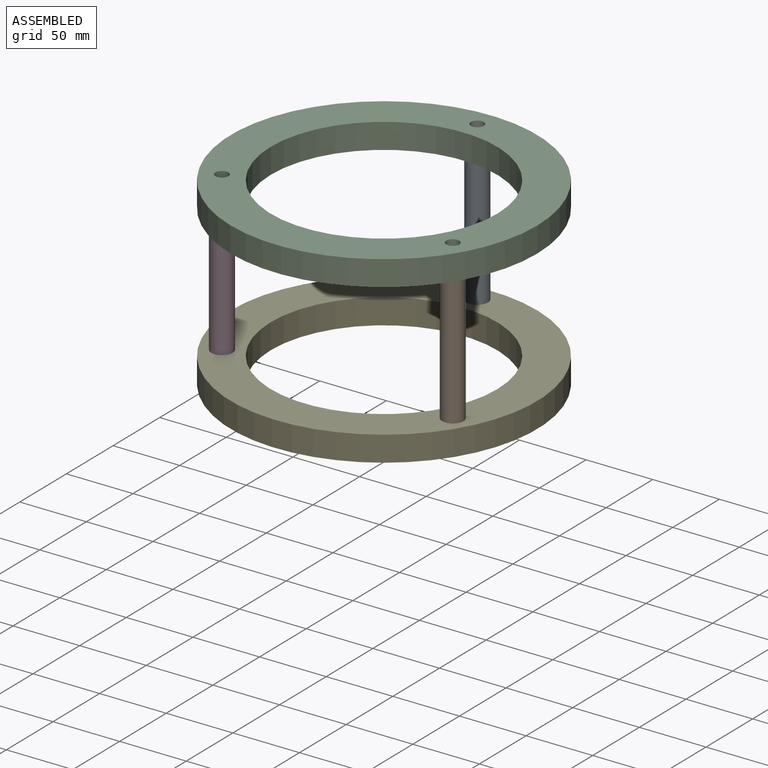
[diagram: assembled view]
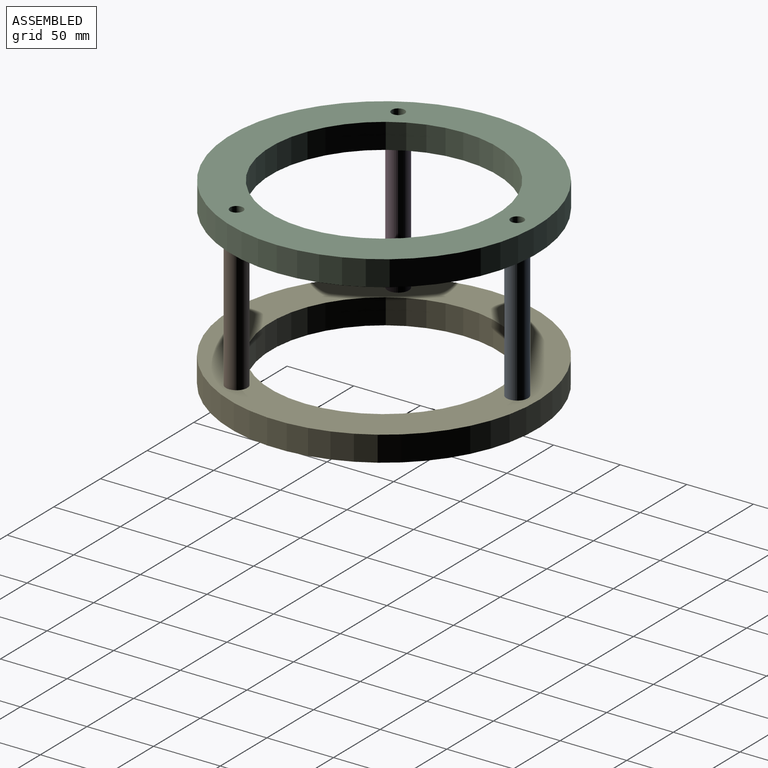
[diagram: assembled view, second angle]
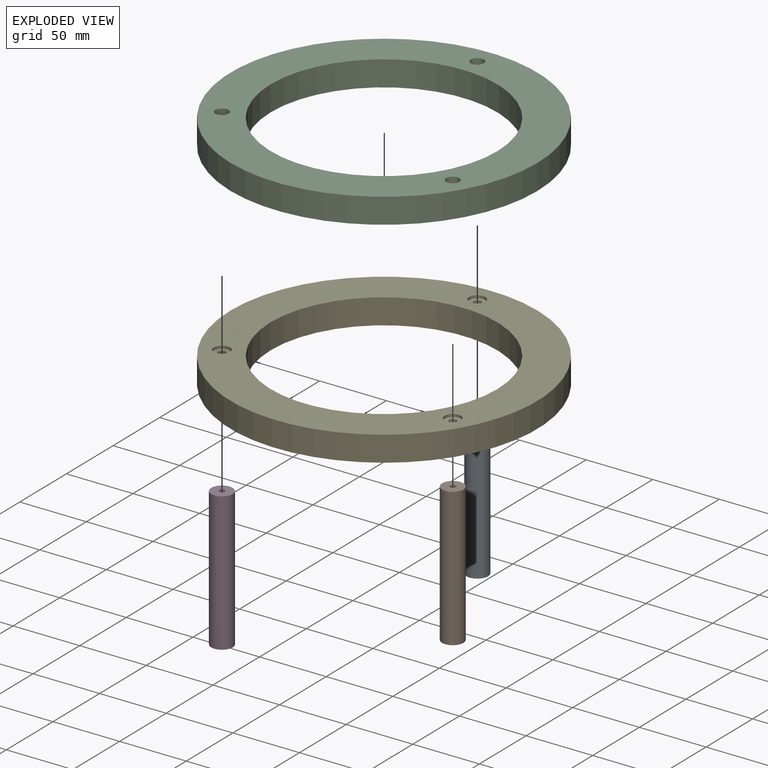
[diagram: exploded view]
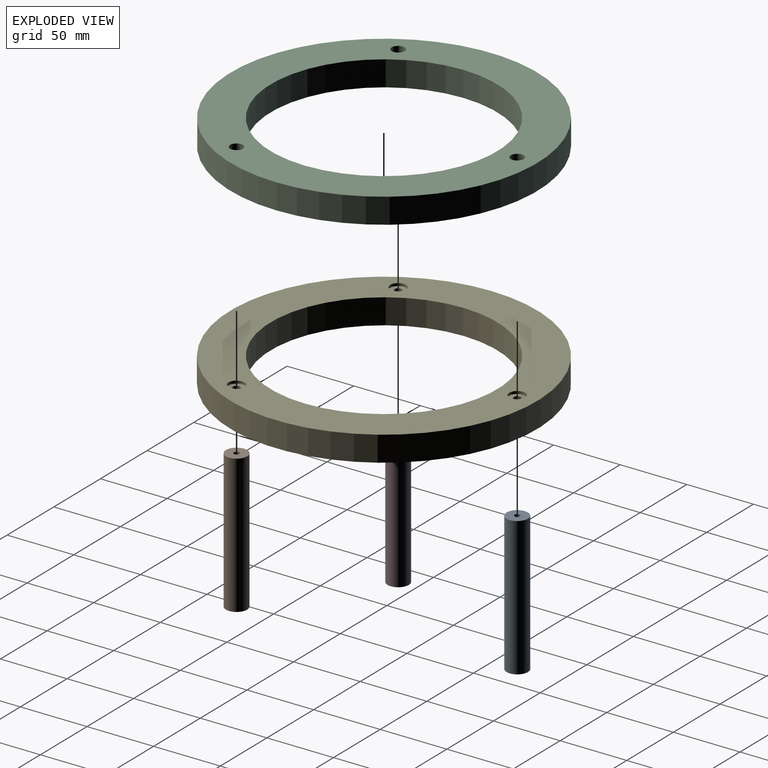
[diagram: exploded view, second angle]
ASSEMBLY  parts=5 mates=10
PART A: 7 faces, bbox 16x16x104 mm
  f0: cylinder r=8mm len=104mm, axis (0,0,-1), area 5227.6mm2, adj f1,f2
  f1: plane 16x16mm, normal (0,0,1), area 187.2mm2, adj f0,f4
  f2: plane 16x16mm, normal (0,0,-1), area 187.2mm2, adj f0,f6
  f3: cone r=0mm half-angle=59deg, axis (0,0,1), area 16.2mm2, adj f4
  f4: cylinder r=2.1mm len=17.4mm, axis (0,0,1), area 229.6mm2, adj f1,f3
  f5: cone r=0mm half-angle=59deg, axis (0,0,-1), area 16.2mm2, adj f6
  f6: cylinder r=2.1mm len=17.4mm, axis (0,0,-1), area 229.6mm2, adj f2,f5
PART B: same geometry as A
PART C: 19 faces, bbox 230x230x19 mm
  f0: cylinder r=85mm len=170mm, axis (0,0,-1), area 10147.3mm2, adj f2,f3
  f1: cylinder r=115mm len=230mm, axis (0,0,-1), area 13728.8mm2, adj f2,f3
  f2: plane 230x230mm, normal (0,0,1), area 18625.6mm2, adj f0,f1,f12,f15,f18
  f3: plane 230x230mm, normal (0,0,-1), area 18510.3mm2, adj f0,f1,f4,f6,f8
  f4: cylinder r=6mm len=12mm, axis (0,0,-1), area 75.4mm2, adj f3,f5
  f5: plane 12x12mm, normal (0,0,-1), area 89.3mm2, adj f4,f16
  f6: cylinder r=6mm len=12mm, axis (0,0,-1), area 75.4mm2, adj f3,f7
  f7: plane 12x12mm, normal (0,0,-1), area 89.3mm2, adj f6,f13
  f8: cylinder r=6mm len=12mm, axis (0,0,-1), area 75.4mm2, adj f3,f9
  f9: plane 12x12mm, normal (0,0,-1), area 89.3mm2, adj f8,f10
  f10: cylinder r=2.75mm len=12mm, axis (0,0,1), area 207.3mm2, adj f9,f11
  f11: plane 9.75x9.75mm, normal (0,0,1), area 50.9mm2, adj f10,f12
  f12: cylinder r=4.88mm len=9.75mm, axis (0,0,1), area 153.2mm2, adj f2,f11
  f13: cylinder r=2.75mm len=12mm, axis (0,0,1), area 207.3mm2, adj f7,f14
  f14: plane 9.75x9.75mm, normal (0,0,1), area 50.9mm2, adj f13,f15
  f15: cylinder r=4.88mm len=9.75mm, axis (0,0,1), area 153.2mm2, adj f2,f14
  f16: cylinder r=2.75mm len=12mm, axis (0,0,1), area 207.3mm2, adj f5,f17
  f17: plane 9.75x9.75mm, normal (0,0,1), area 50.9mm2, adj f16,f18
  f18: cylinder r=4.88mm len=9.75mm, axis (0,0,1), area 153.2mm2, adj f2,f17
PART D: same geometry as A
PART E: same geometry as C
PLACE A t=(-86.32,92.45,-46.13)mm
PLACE B t=(0.29,-57.55,-46.13)mm
PLACE C t=(-86.32,-7.55,55.87)mm
PLACE D t=(-172.92,-57.55,-46.13)mm
PLACE E rot(axis=(0,1,0),180deg) t=(-86.32,-7.55,-44.13)mm
MATE cylindrical E.f6 <-> D.f0  axis (0,0,1) through (-172.92,-57.55,-45.13)mm
MATE cylindrical B.f0 <-> C.f6  axis (0,0,-1) through (0.29,-57.55,5.87)mm
MATE cylindrical E.f8 <-> A.f0  axis (0,0,1) through (-86.32,92.45,-45.13)mm
MATE cylindrical A.f0 <-> C.f8  axis (0,0,-1) through (-86.32,92.45,57.87)mm
MATE planar B.f0 <-> C.f6  axis (0,0,1) through (0.29,-57.55,57.87)mm
MATE cylindrical D.f0 <-> C.f4  axis (0,0,-1) through (-172.92,-57.55,57.87)mm
MATE planar D.f0 <-> C.f4  axis (0,0,1) through (-172.92,-57.55,57.87)mm
MATE planar A.f0 <-> C.f8  axis (0,0,1) through (-86.32,92.45,57.87)mm
MATE planar B.f0 <-> E.f4  axis (0,0,-1) through (0.29,-57.55,-46.13)mm
MATE cylindrical E.f4 <-> B.f0  axis (0,0,1) through (0.29,-57.55,-45.13)mm
